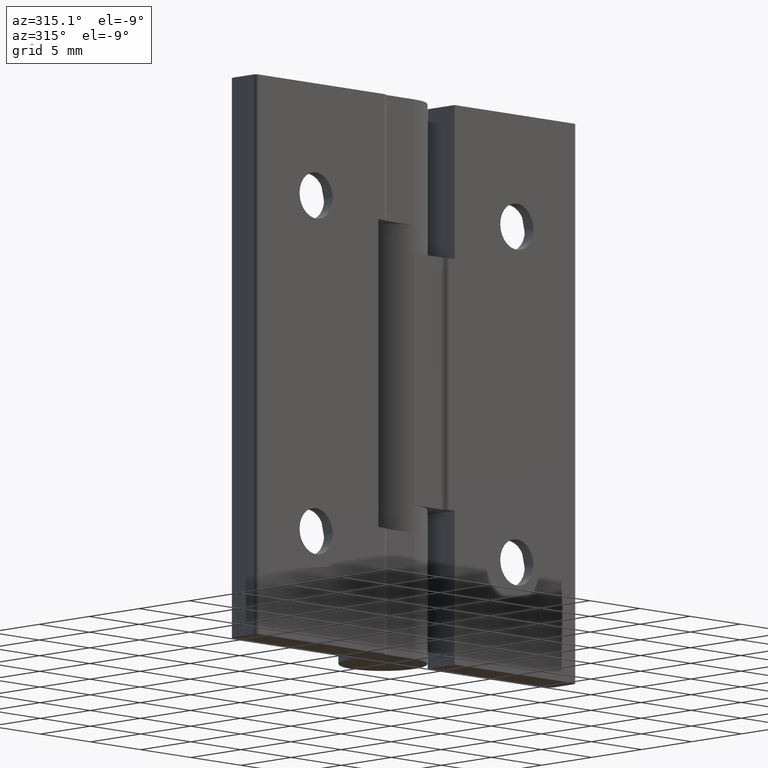
[diagram: clean part render]
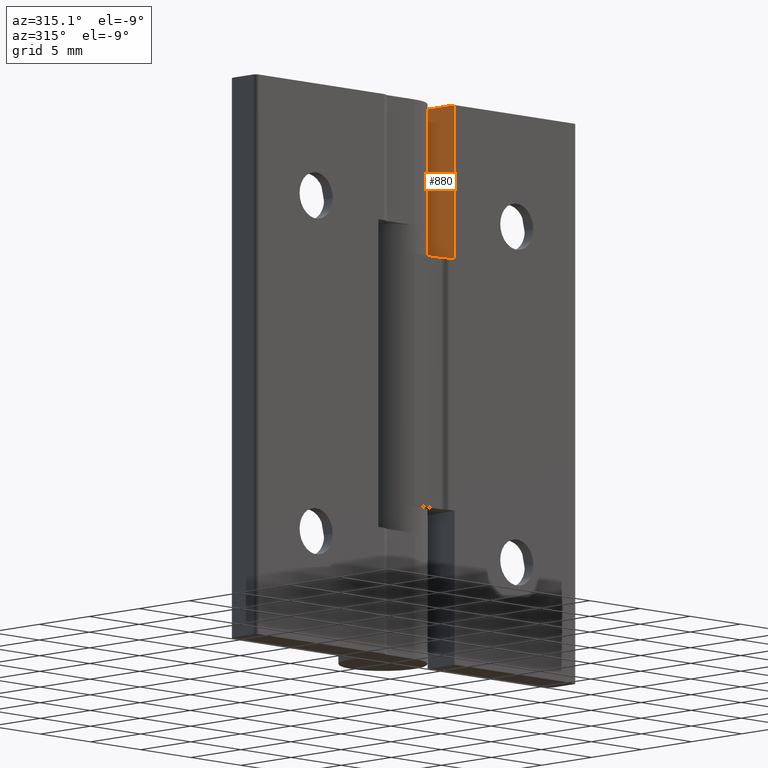
[diagram: same view with one face highlighted and labeled with its STEP entity id]
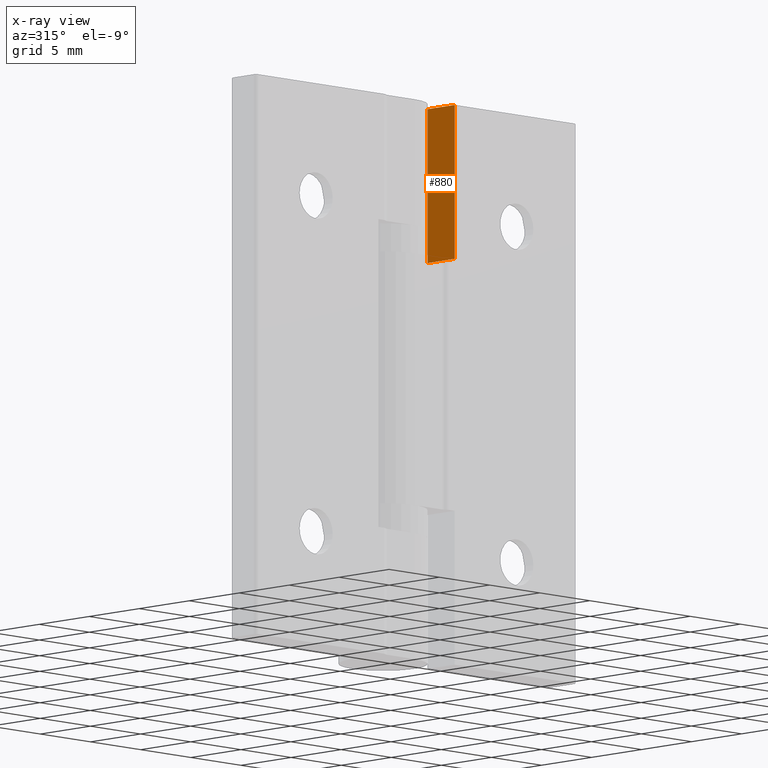
[diagram: x-ray of the same camera — body ghosted, the highlighted face saturated]
A machine part, auxiliary view. The second image highlights one B-rep face of the part: STEP entity #880.
The next image is the same camera in x-ray: the body ghosted, the highlighted face saturated — about 0% of this face is hidden behind the body in this view.
In plain terms, the highlighted planar face has unit normal (1, 0, -0).
Its self-contained STEP definition (entity closure, byte-faithful):
#187=FACE_OUTER_BOUND('',#258,.T.);
#258=EDGE_LOOP('',(#741,#742,#743,#744));
#325=LINE('',#1469,#386);
#326=LINE('',#1471,#387);
#327=LINE('',#1473,#388);
#328=LINE('',#1474,#389);
#386=VECTOR('',#1200,11.);
#387=VECTOR('',#1201,2.7);
#388=VECTOR('',#1202,11.);
#389=VECTOR('',#1203,2.7);
#466=VERTEX_POINT('',#1467);
#467=VERTEX_POINT('',#1468);
#468=VERTEX_POINT('',#1470);
#469=VERTEX_POINT('',#1472);
#565=EDGE_CURVE('',#466,#467,#325,.T.);
#566=EDGE_CURVE('',#468,#466,#326,.T.);
#567=EDGE_CURVE('',#469,#468,#327,.T.);
#568=EDGE_CURVE('',#467,#469,#328,.T.);
#741=ORIENTED_EDGE('',*,*,#565,.F.);
#742=ORIENTED_EDGE('',*,*,#566,.F.);
#743=ORIENTED_EDGE('',*,*,#567,.F.);
#744=ORIENTED_EDGE('',*,*,#568,.F.);
#839=PLANE('',#975);
#880=ADVANCED_FACE('',(#187),#839,.F.);
#975=AXIS2_PLACEMENT_3D('',#1466,#1198,#1199);
#1198=DIRECTION('center_axis',(1.,0.,-1.76626390281275E-16));
#1199=DIRECTION('ref_axis',(-1.77635683940025E-16,0.,-1.));
#1200=DIRECTION('',(1.76626390281275E-16,0.,1.));
#1201=DIRECTION('',(0.,1.,0.));
#1202=DIRECTION('',(-1.76626390281275E-16,-3.06397945697969E-32,-1.));
#1203=DIRECTION('',(0.,-1.,0.));
#1466=CARTESIAN_POINT('Origin',(3.8,-0.649999999999999,0.));
#1467=CARTESIAN_POINT('',(3.8,-0.649999999999999,-11.));
#1468=CARTESIAN_POINT('',(3.8,-0.649999999999999,0.));
#1469=CARTESIAN_POINT('',(3.8,-0.649999999999999,-3.35590141534423E-16));
#1470=CARTESIAN_POINT('',(3.8,-3.35,-11.));
#1471=CARTESIAN_POINT('',(3.8,-0.649999999999999,-11.));
#1472=CARTESIAN_POINT('',(3.8,-3.35,0.));
#1473=CARTESIAN_POINT('',(3.8,-3.35,1.07742098071578E-15));
#1474=CARTESIAN_POINT('',(3.8,-0.324999999999999,0.));